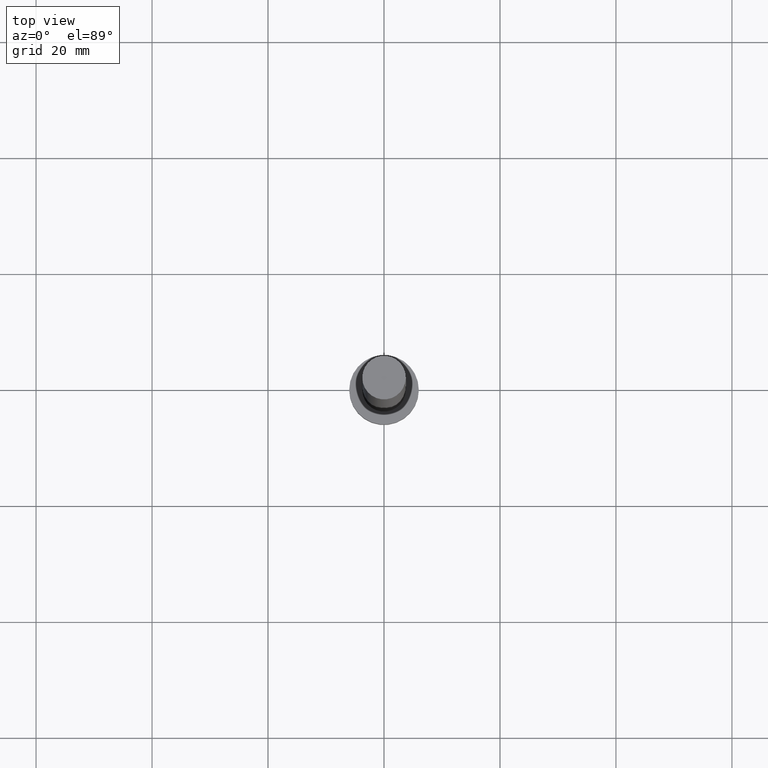
[diagram: clean part render]
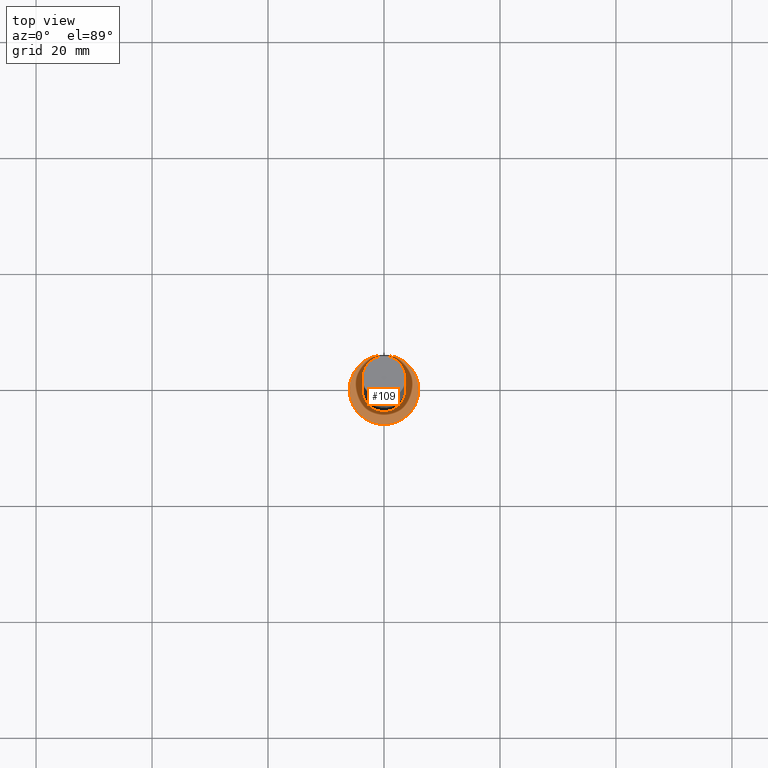
[diagram: same view with one face highlighted and labeled with its STEP entity id]
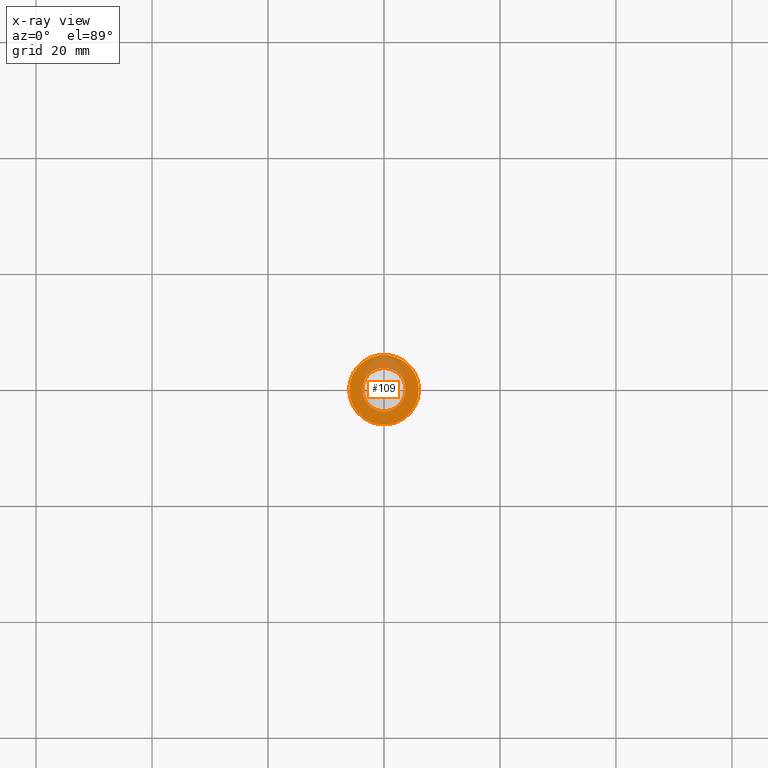
[diagram: x-ray of the same camera — body ghosted, the highlighted face saturated]
A machine part, top view. The second image highlights one B-rep face of the part: STEP entity #109.
The next image is the same camera in x-ray: the body ghosted, the highlighted face saturated — about 23% of this face is hidden behind the body in this view.
In plain terms, the highlighted planar face has unit normal (0, 0, 1).
Its self-contained STEP definition (entity closure, byte-faithful):
#2 = ORIENTED_EDGE ( 'NONE', *, *, #187, .F. ) ;
#11 = CARTESIAN_POINT ( 'NONE',  ( 0.000000000000000000, 0.000000000000000000, 5.000000000000000000 ) ) ;
#13 = CARTESIAN_POINT ( 'NONE',  ( -6.000000000000000888, 0.000000000000000000, 5.000000000000000000 ) ) ;
#28 = DIRECTION ( 'NONE',  ( 1.000000000000000000, 0.000000000000000000, 0.000000000000000000 ) ) ;
#36 = EDGE_LOOP ( 'NONE', ( #108, #2 ) ) ;
#43 = FACE_OUTER_BOUND ( 'NONE', #233, .T. ) ;
#46 = VERTEX_POINT ( 'NONE', #160 ) ;
#50 = CIRCLE ( 'NONE', #158, 6.000000000000000888 ) ;
#54 = EDGE_CURVE ( 'NONE', #46, #64, #50, .T. ) ;
#61 = DIRECTION ( 'NONE',  ( 1.000000000000000000, 0.000000000000000000, -0.000000000000000000 ) ) ;
#64 = VERTEX_POINT ( 'NONE', #13 ) ;
#92 = CIRCLE ( 'NONE', #121, 3.750000000000000000 ) ;
#93 = DIRECTION ( 'NONE',  ( 0.000000000000000000, 0.000000000000000000, 1.000000000000000000 ) ) ;
#106 = VERTEX_POINT ( 'NONE', #163 ) ;
#108 = ORIENTED_EDGE ( 'NONE', *, *, #245, .F. ) ;
#109 = ADVANCED_FACE ( 'NONE', ( #140, #43 ), #221, .T. ) ;
#121 = AXIS2_PLACEMENT_3D ( 'NONE', #247, #159, #28 ) ;
#139 = CARTESIAN_POINT ( 'NONE',  ( 0.000000000000000000, 0.000000000000000000, 5.000000000000000000 ) ) ;
#140 = FACE_BOUND ( 'NONE', #36, .T. ) ;
#158 = AXIS2_PLACEMENT_3D ( 'NONE', #11, #93, #246 ) ;
#159 = DIRECTION ( 'NONE',  ( 0.000000000000000000, 0.000000000000000000, 1.000000000000000000 ) ) ;
#160 = CARTESIAN_POINT ( 'NONE',  ( 6.000000000000000888, 7.347880794884120722E-16, 5.000000000000000000 ) ) ;
#162 = AXIS2_PLACEMENT_3D ( 'NONE', #166, #249, #201 ) ;
#163 = CARTESIAN_POINT ( 'NONE',  ( 3.750000000000000000, 4.592425496802573972E-16, 5.000000000000000000 ) ) ;
#166 = CARTESIAN_POINT ( 'NONE',  ( 0.000000000000000000, 0.000000000000000000, 5.000000000000000000 ) ) ;
#168 = ORIENTED_EDGE ( 'NONE', *, *, #237, .T. ) ;
#170 = ORIENTED_EDGE ( 'NONE', *, *, #54, .T. ) ;
#187 = EDGE_CURVE ( 'NONE', #106, #215, #203, .T. ) ;
#193 = CIRCLE ( 'NONE', #162, 6.000000000000000888 ) ;
#197 = DIRECTION ( 'NONE',  ( 0.000000000000000000, 0.000000000000000000, 1.000000000000000000 ) ) ;
#199 = CARTESIAN_POINT ( 'NONE',  ( -3.750000000000000000, 0.000000000000000000, 5.000000000000000000 ) ) ;
#201 = DIRECTION ( 'NONE',  ( 1.000000000000000000, 0.000000000000000000, 0.000000000000000000 ) ) ;
#203 = CIRCLE ( 'NONE', #236, 3.750000000000000000 ) ;
#213 = AXIS2_PLACEMENT_3D ( 'NONE', #224, #197, #61 ) ;
#215 = VERTEX_POINT ( 'NONE', #199 ) ;
#219 = DIRECTION ( 'NONE',  ( 1.000000000000000000, 0.000000000000000000, 0.000000000000000000 ) ) ;
#221 = PLANE ( 'NONE',  #213 ) ;
#224 = CARTESIAN_POINT ( 'NONE',  ( 0.000000000000000000, 0.000000000000000000, 5.000000000000000000 ) ) ;
#233 = EDGE_LOOP ( 'NONE', ( #168, #170 ) ) ;
#236 = AXIS2_PLACEMENT_3D ( 'NONE', #139, #239, #219 ) ;
#237 = EDGE_CURVE ( 'NONE', #64, #46, #193, .T. ) ;
#239 = DIRECTION ( 'NONE',  ( 0.000000000000000000, 0.000000000000000000, 1.000000000000000000 ) ) ;
#245 = EDGE_CURVE ( 'NONE', #215, #106, #92, .T. ) ;
#246 = DIRECTION ( 'NONE',  ( 1.000000000000000000, 0.000000000000000000, 0.000000000000000000 ) ) ;
#247 = CARTESIAN_POINT ( 'NONE',  ( 0.000000000000000000, 0.000000000000000000, 5.000000000000000000 ) ) ;
#249 = DIRECTION ( 'NONE',  ( 0.000000000000000000, 0.000000000000000000, 1.000000000000000000 ) ) ;